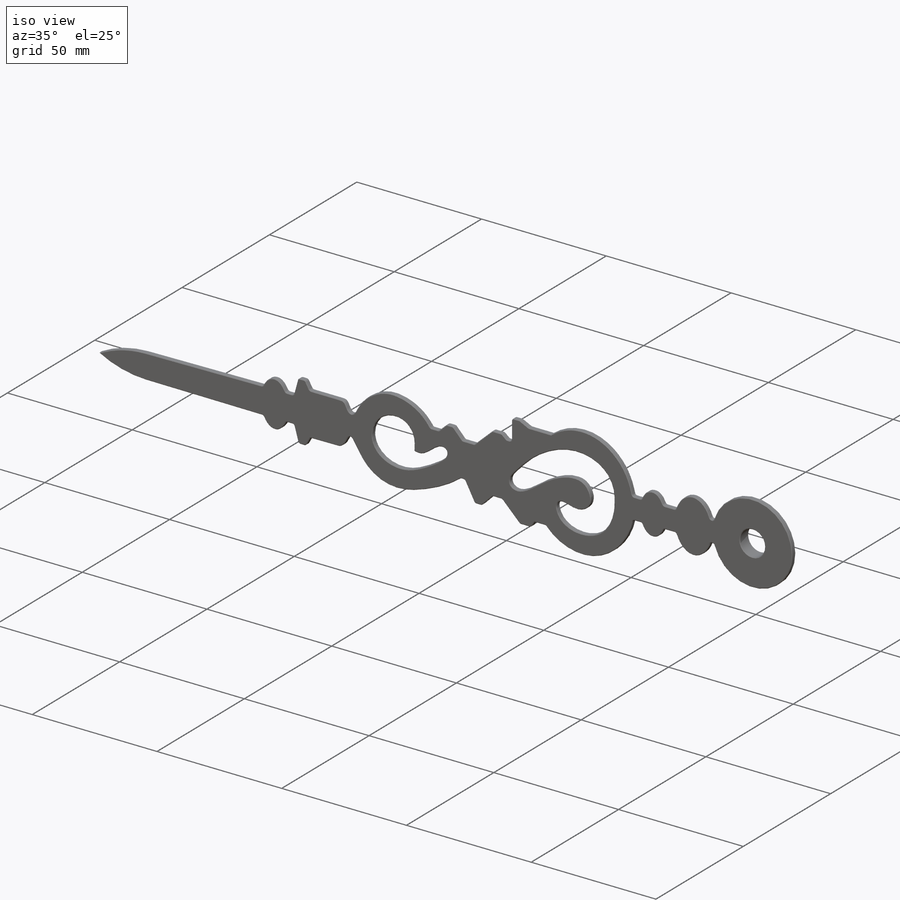
[diagram: iso view]
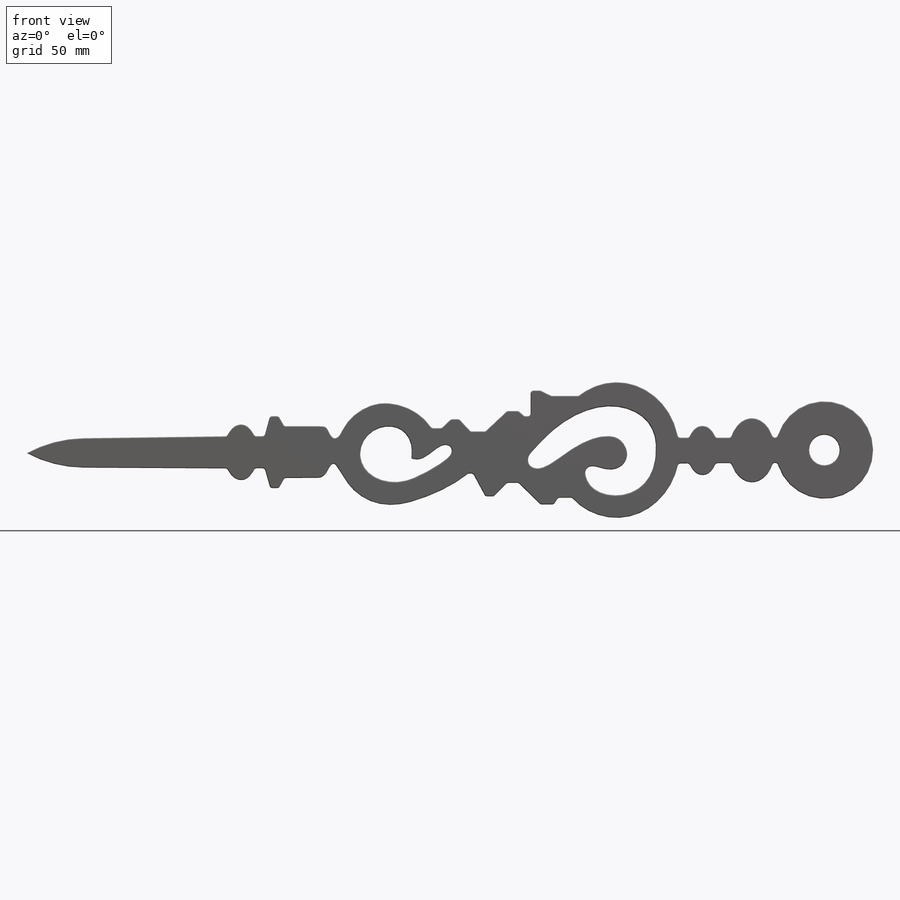
[diagram: front view]
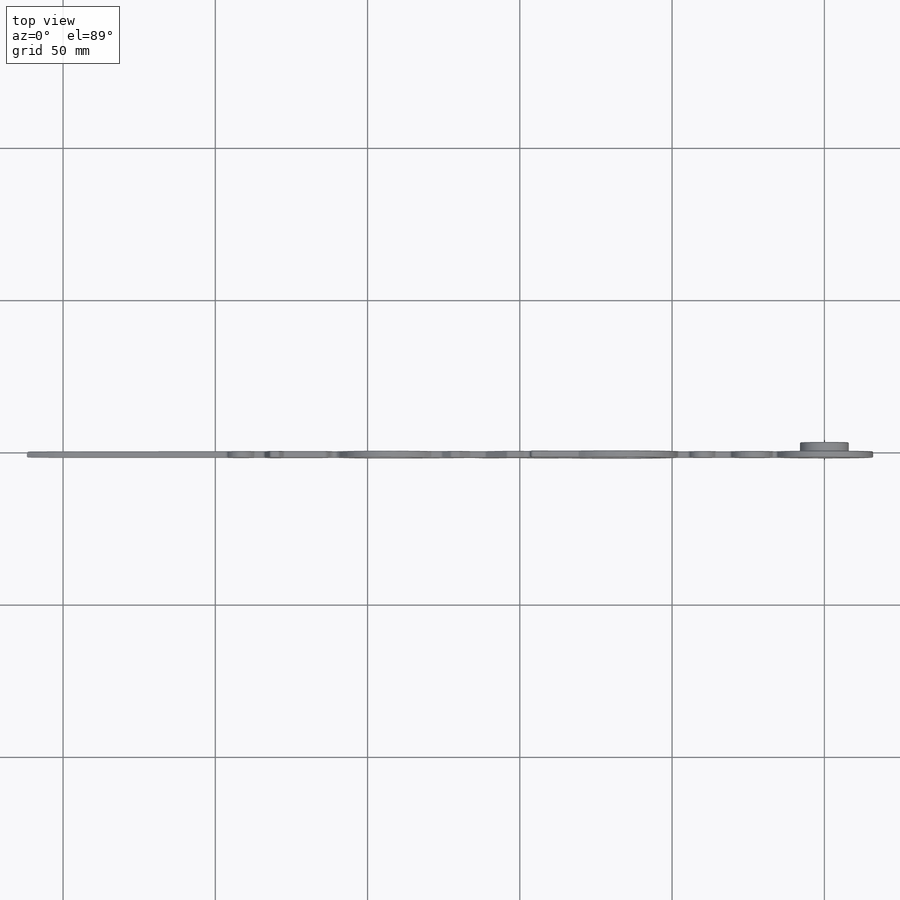
[diagram: top view]
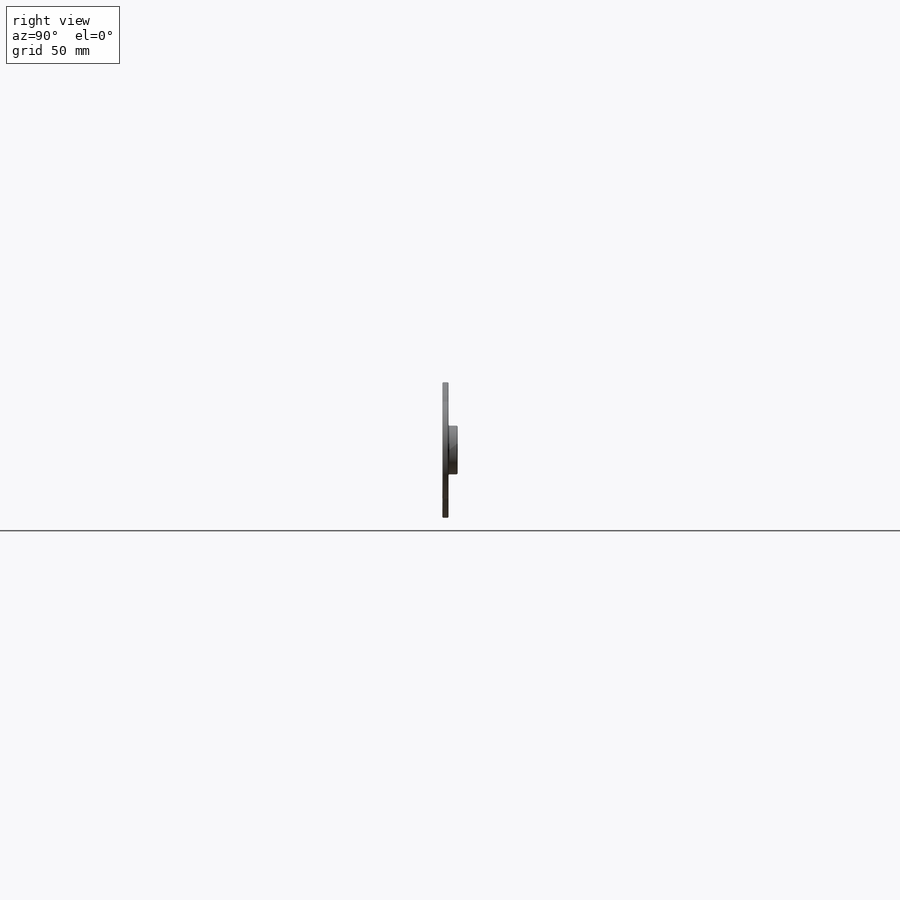
[diagram: right view]
SOLIDWORKS PART (.sldprt)
format: sldprt  version: not decoded by parser v0  size: 888,320 bytes
history: native  units: mm
features: plane x3, sketch x3, extrude x2, material x1, chamfer x1 (+12 scaffold rows collapsed)
feature tree (22):
  scaffold x12  (default folders/planes/origin — collapsed)
  material  "Настроенная пользователем пластмасса"
  plane  "Спереди"
  plane  "Сверху"
  plane  "Справа"
  sketch  "Эскиз1"
  sketch  "Эскиз2"  dims[D1=10.0mm D2=32.0mm D4=1.0mm D5=1.0mm D6=1.0mm D7=1.0mm D8=2.0mm D9=1.0mm D10=1.0mm D3=261.86mm]
  extrude  "Бобышка-Вытянуть1"  Depth=2mm
  sketch  "Эскиз3"  dims[D1=16.0mm]
  extrude  "Бобышка-Вытянуть2"  Depth=3mm
  chamfer  "Фаска1"  Distance=0.25mm Angle=45deg
decode coverage: 5 of 6 modeling features carry decoded parameters
note: suppression state not decoded; provenance and decode notes live in map.json
